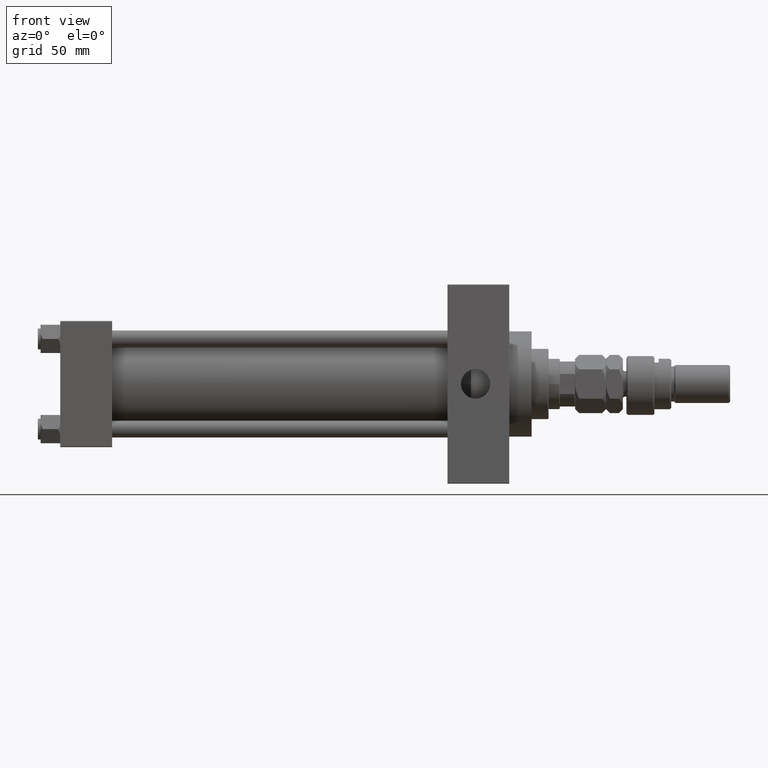
[diagram: clean part render]
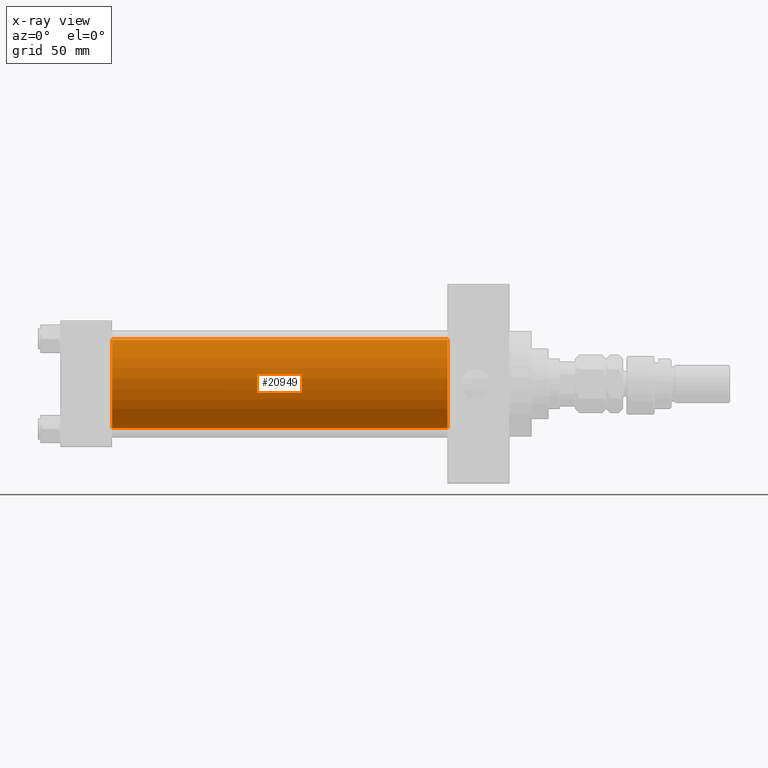
[diagram: x-ray — body ghosted, one internal face saturated and labeled with its STEP entity id]
A machine part, front view, then the same camera in x-ray: the body is ghosted and one INTERNAL B-rep face — a face not visible from any outside direction — is saturated and labeled: STEP entity #20949.
In plain terms, the highlighted cylindrical surface (partial cylindrical patch) has radius 31.5 mm, axis along (-1, -0, -0).
Its self-contained STEP definition (entity closure, byte-faithful):
#533 = CIRCLE ( 'NONE', #30589, 31.50000000000000000 ) ;
#780 = VECTOR ( 'NONE', #1200, 1000.000000000000000 ) ;
#1200 = DIRECTION ( 'NONE',  ( -1.000000000000000000, -0.000000000000000000, -0.000000000000000000 ) ) ;
#1754 = DIRECTION ( 'NONE',  ( -1.000000000000000000, -0.000000000000000000, -0.000000000000000000 ) ) ;
#3176 = CARTESIAN_POINT ( 'NONE',  ( 275.9999999999999432, -2.602085213965210642E-15, 0.000000000000000000 ) ) ;
#3427 = DIRECTION ( 'NONE',  ( 1.000000000000000000, 0.000000000000000000, 0.000000000000000000 ) ) ;
#3658 = DIRECTION ( 'NONE',  ( -1.000000000000000000, -0.000000000000000000, -0.000000000000000000 ) ) ;
#4436 = AXIS2_PLACEMENT_3D ( 'NONE', #3176, #3427, #14858 ) ;
#5205 = EDGE_CURVE ( 'NONE', #8386, #8468, #23166, .T. ) ;
#7921 = ORIENTED_EDGE ( 'NONE', *, *, #19600, .F. ) ;
#8386 = VERTEX_POINT ( 'NONE', #37243 ) ;
#8468 = VERTEX_POINT ( 'NONE', #36998 ) ;
#8471 = EDGE_CURVE ( 'NONE', #8468, #30722, #38528, .T. ) ;
#9366 = CYLINDRICAL_SURFACE ( 'NONE', #32523, 31.50000000000000000 ) ;
#9495 = ORIENTED_EDGE ( 'NONE', *, *, #8471, .T. ) ;
#11953 = CARTESIAN_POINT ( 'NONE',  ( 37.00000000000000000, -2.602085213965210642E-15, 0.000000000000000000 ) ) ;
#12213 = EDGE_CURVE ( 'NONE', #12516, #30722, #533, .T. ) ;
#12516 = VERTEX_POINT ( 'NONE', #30473 ) ;
#13434 = FACE_OUTER_BOUND ( 'NONE', #21806, .T. ) ;
#13679 = CARTESIAN_POINT ( 'NONE',  ( 275.9999999999999432, -2.602085213965210642E-15, 0.000000000000000000 ) ) ;
#13797 = LINE ( 'NONE', #16692, #780 ) ;
#14858 = DIRECTION ( 'NONE',  ( 0.000000000000000000, 0.000000000000000000, -1.000000000000000000 ) ) ;
#16692 = CARTESIAN_POINT ( 'NONE',  ( 275.9999999999999432, -2.602085213965210642E-15, 31.50000000000000000 ) ) ;
#19600 = EDGE_CURVE ( 'NONE', #8386, #12516, #13797, .T. ) ;
#19861 = DIRECTION ( 'NONE',  ( 0.000000000000000000, 0.000000000000000000, -1.000000000000000000 ) ) ;
#20949 = ADVANCED_FACE ( 'NONE', ( #13434 ), #9366, .F. ) ;
#21806 = EDGE_LOOP ( 'NONE', ( #31792, #9495, #39591, #7921 ) ) ;
#23166 = CIRCLE ( 'NONE', #4436, 31.50000000000000000 ) ;
#28961 = DIRECTION ( 'NONE',  ( 0.000000000000000000, 0.000000000000000000, 1.000000000000000000 ) ) ;
#30473 = CARTESIAN_POINT ( 'NONE',  ( 37.00000000000000000, -2.602085213965210642E-15, 31.50000000000000000 ) ) ;
#30589 = AXIS2_PLACEMENT_3D ( 'NONE', #11953, #43023, #19861 ) ;
#30722 = VERTEX_POINT ( 'NONE', #46684 ) ;
#31792 = ORIENTED_EDGE ( 'NONE', *, *, #5205, .T. ) ;
#32523 = AXIS2_PLACEMENT_3D ( 'NONE', #13679, #1754, #28961 ) ;
#36998 = CARTESIAN_POINT ( 'NONE',  ( 275.9999999999999432, 1.255552203348951061E-15, -31.50000000000000000 ) ) ;
#37243 = CARTESIAN_POINT ( 'NONE',  ( 275.9999999999999432, -2.602085213965210642E-15, 31.50000000000000000 ) ) ;
#38528 = LINE ( 'NONE', #41831, #38719 ) ;
#38719 = VECTOR ( 'NONE', #3658, 1000.000000000000000 ) ;
#39591 = ORIENTED_EDGE ( 'NONE', *, *, #12213, .F. ) ;
#41831 = CARTESIAN_POINT ( 'NONE',  ( 275.9999999999999432, 1.255552203348951061E-15, -31.50000000000000000 ) ) ;
#43023 = DIRECTION ( 'NONE',  ( 1.000000000000000000, 0.000000000000000000, 0.000000000000000000 ) ) ;
#46684 = CARTESIAN_POINT ( 'NONE',  ( 37.00000000000000000, 1.255552203348951061E-15, -31.50000000000000000 ) ) ;